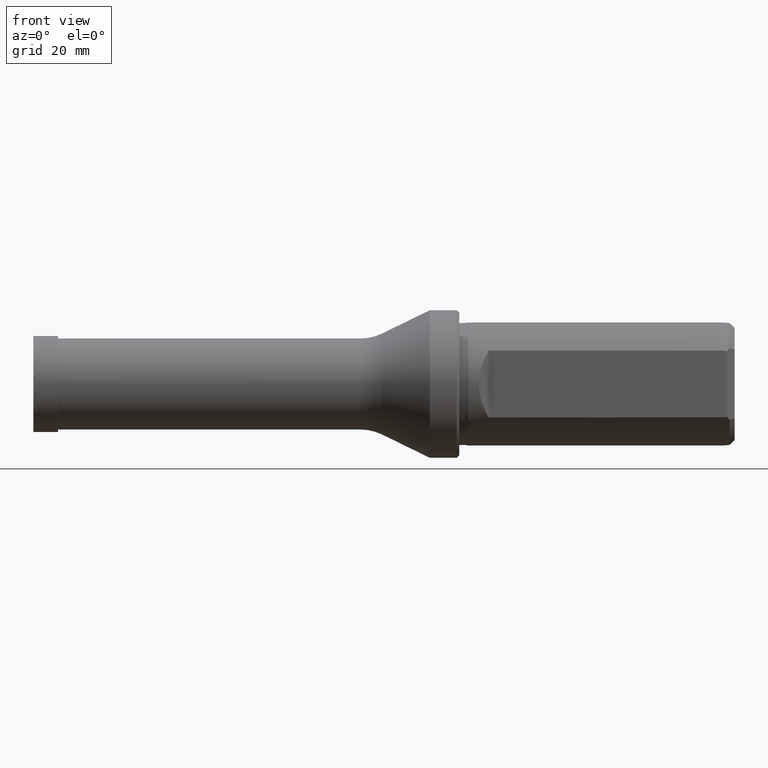
[diagram: clean part render]
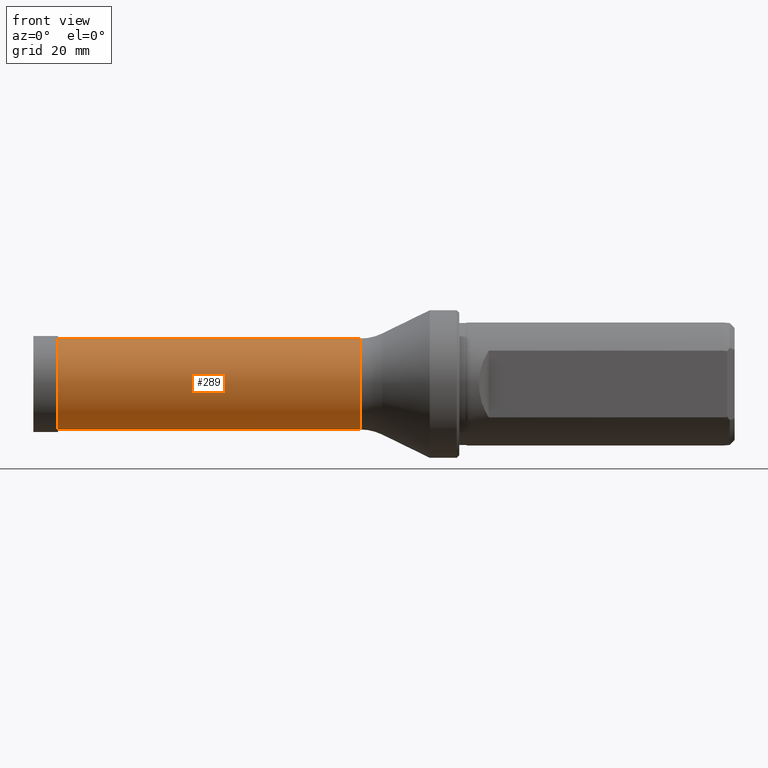
[diagram: same view with one face highlighted and labeled with its STEP entity id]
A machine part, front view. The second image highlights one B-rep face of the part: STEP entity #289.
In plain terms, the highlighted cylindrical surface (partial cylindrical patch) has radius 9.25 mm, axis along (-1, -0, -0).
Its self-contained STEP definition (entity closure, byte-faithful):
#11 = FACE_OUTER_BOUND ( 'NONE', #537, .T. ) ;
#14 = DIRECTION ( 'NONE',  ( 0.0000000000000000000, 0.0000000000000000000, 1.000000000000000000 ) ) ;
#29 = DIRECTION ( 'NONE',  ( -1.000000000000000000, -0.0000000000000000000, -0.0000000000000000000 ) ) ;
#34 = AXIS2_PLACEMENT_3D ( 'NONE', #70, #29, #14 ) ;
#70 = CARTESIAN_POINT ( 'NONE',  ( 66.01500000000000100, 0.0000000000000000000, 0.0000000000000000000 ) ) ;
#79 = ORIENTED_EDGE ( 'NONE', *, *, #485, .T. ) ;
#85 = CARTESIAN_POINT ( 'NONE',  ( 4.500000000000000000, 1.132798289211301700E-015, -9.250000000000000000 ) ) ;
#87 = AXIS2_PLACEMENT_3D ( 'NONE', #674, #686, #599 ) ;
#165 = CIRCLE ( 'NONE', #34, 9.250000000000000000 ) ;
#222 = VERTEX_POINT ( 'NONE', #718 ) ;
#289 = ADVANCED_FACE ( 'NONE', ( #11 ), #861, .T. ) ;
#316 = AXIS2_PLACEMENT_3D ( 'NONE', #986, #982, #975 ) ;
#391 = EDGE_CURVE ( 'NONE', #222, #1097, #165, .T. ) ;
#437 = VERTEX_POINT ( 'NONE', #1152 ) ;
#463 = EDGE_CURVE ( 'NONE', #222, #655, #1077, .T. ) ;
#485 = EDGE_CURVE ( 'NONE', #1097, #437, #1026, .T. ) ;
#487 = EDGE_CURVE ( 'NONE', #655, #437, #1104, .T. ) ;
#537 = EDGE_LOOP ( 'NONE', ( #813, #1115, #79, #1044 ) ) ;
#599 = DIRECTION ( 'NONE',  ( 0.0000000000000000000, 0.0000000000000000000, 1.000000000000000000 ) ) ;
#648 = CARTESIAN_POINT ( 'NONE',  ( 66.01500000000000100, 0.0000000000000000000, 9.250000000000000000 ) ) ;
#655 = VERTEX_POINT ( 'NONE', #85 ) ;
#674 = CARTESIAN_POINT ( 'NONE',  ( 0.0000000000000000000, 0.0000000000000000000, 0.0000000000000000000 ) ) ;
#686 = DIRECTION ( 'NONE',  ( -1.000000000000000000, -0.0000000000000000000, -0.0000000000000000000 ) ) ;
#718 = CARTESIAN_POINT ( 'NONE',  ( 66.01500000000000100, 1.132798289211301700E-015, -9.250000000000000000 ) ) ;
#813 = ORIENTED_EDGE ( 'NONE', *, *, #463, .F. ) ;
#861 = CYLINDRICAL_SURFACE ( 'NONE', #87, 9.250000000000000000 ) ;
#964 = VECTOR ( 'NONE', #1014, 1000.000000000000000 ) ;
#975 = DIRECTION ( 'NONE',  ( 0.0000000000000000000, 0.0000000000000000000, 1.000000000000000000 ) ) ;
#982 = DIRECTION ( 'NONE',  ( -1.000000000000000000, 0.0000000000000000000, 0.0000000000000000000 ) ) ;
#986 = CARTESIAN_POINT ( 'NONE',  ( 4.500000000000000000, 0.0000000000000000000, 0.0000000000000000000 ) ) ;
#1014 = DIRECTION ( 'NONE',  ( -1.000000000000000000, -0.0000000000000000000, -0.0000000000000000000 ) ) ;
#1018 = CARTESIAN_POINT ( 'NONE',  ( 0.0000000000000000000, 0.0000000000000000000, 9.250000000000000000 ) ) ;
#1026 = LINE ( 'NONE', #1018, #964 ) ;
#1044 = ORIENTED_EDGE ( 'NONE', *, *, #487, .F. ) ;
#1055 = CARTESIAN_POINT ( 'NONE',  ( 0.0000000000000000000, 1.132798289211301700E-015, -9.250000000000000000 ) ) ;
#1061 = VECTOR ( 'NONE', #1070, 1000.000000000000000 ) ;
#1070 = DIRECTION ( 'NONE',  ( -1.000000000000000000, -0.0000000000000000000, -0.0000000000000000000 ) ) ;
#1077 = LINE ( 'NONE', #1055, #1061 ) ;
#1097 = VERTEX_POINT ( 'NONE', #648 ) ;
#1104 = CIRCLE ( 'NONE', #316, 9.250000000000000000 ) ;
#1115 = ORIENTED_EDGE ( 'NONE', *, *, #391, .T. ) ;
#1152 = CARTESIAN_POINT ( 'NONE',  ( 4.500000000000000000, 0.0000000000000000000, 9.250000000000000000 ) ) ;